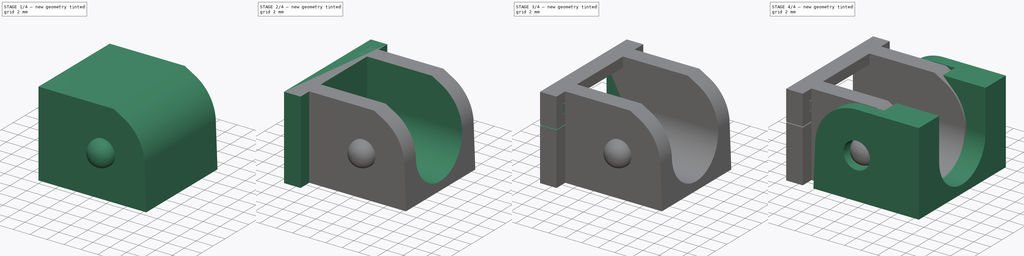
[diagram: build sequence overview — one tinted view per stage of 4, left to right]
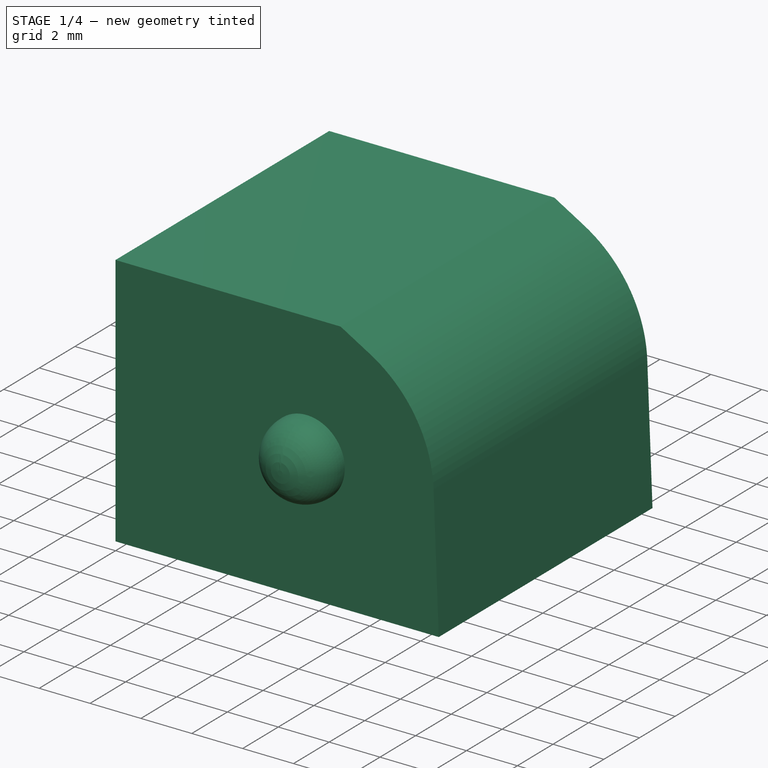
[diagram: stage 1 of 4 — iso view after this stage's code; geometry added in this stage tinted green]
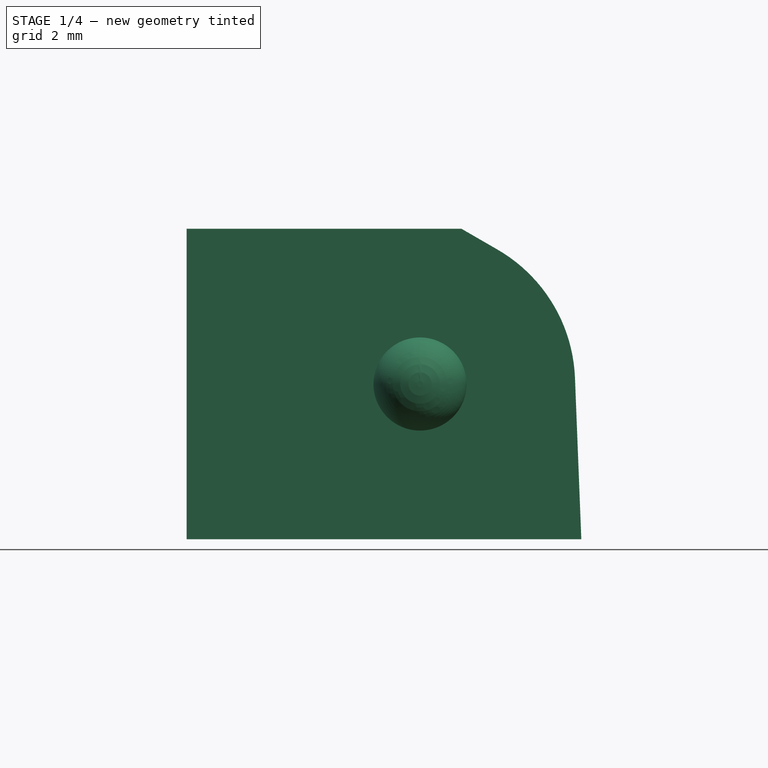
[diagram: stage 1 of 4 — front view after this stage's code; geometry added in this stage tinted green]
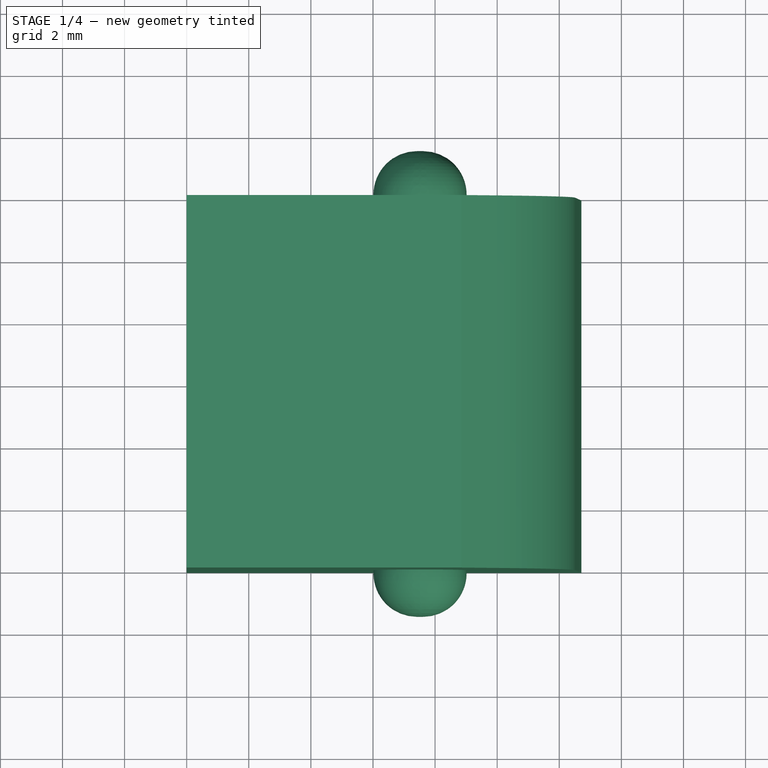
[diagram: stage 1 of 4 — top view after this stage's code; geometry added in this stage tinted green]
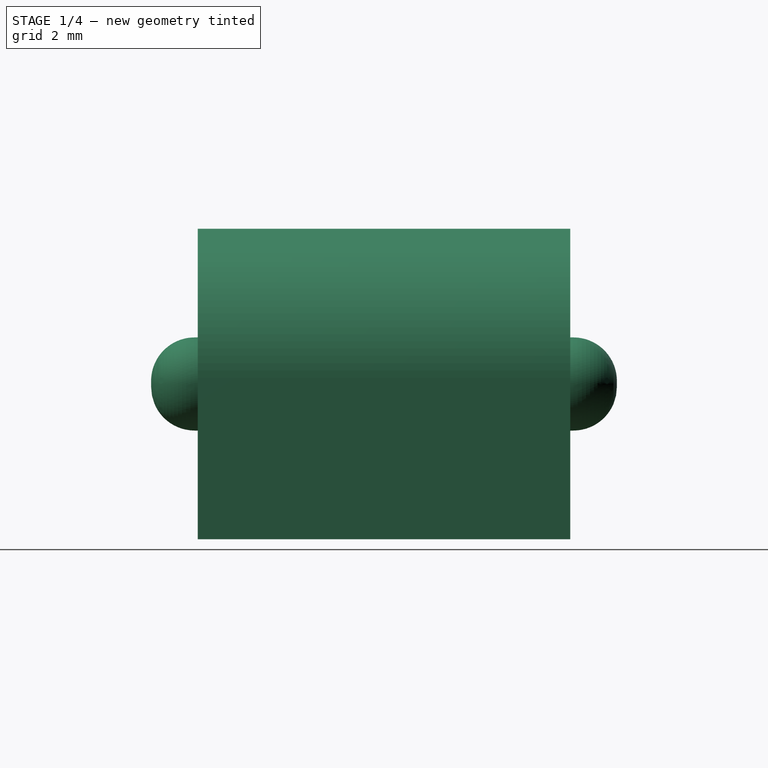
[diagram: stage 1 of 4 — right view after this stage's code; geometry added in this stage tinted green]
FCSTD DOCUMENT  (FreeCAD 0.19R23463 (Git))
Label: cable_carrier
License: All rights reserved
LicenseURL: http://en.wikipedia.org/wiki/All_rights_reserved
objects: Sketcher::SketchObject×12, PartDesign::Pocket×6, PartDesign::Pad×4, PartDesign::Body×4, Spreadsheet::Sheet×1, PartDesign::ShapeBinder×1, PartDesign::Plane×1, PartDesign::Revolution×1, PartDesign::Mirrored×1
note: 41 computed .brp shape members not serialized (recipe doc carries the construction recipe); baked Part::Feature solids carry a one-line shape summary decoded from their .brp

FEATURE [Spreadsheet::Sheet] Spreadsheet  label="parameters"
FEATURE [Sketcher::SketchObject] Sketch
  MapMode = 5
  Placement = pos=(0,0,0) rot=(1,0,0;1.5708rad)
  Support = -> [XZ_Plane]
  expr: Constraints[24] = 4.5 / 2
  sketch-geometry (19):
    g0: LineSegment StartX=0 StartY=0 StartZ=0 EndX=12.7099 EndY=0 EndZ=0
    g1: LineSegment StartX=12.7099 StartY=0 StartZ=0 EndX=12.5058 EndY=5.1963 EndZ=0
    g2: LineSegment StartX=7.50963 StartY=10 StartZ=0 EndX=0 EndY=10 EndZ=0
    g3: LineSegment StartX=0 StartY=10 StartZ=0 EndX=0 EndY=0 EndZ=0
    g4: LineSegment StartX=0 StartY=0 StartZ=0 EndX=-12.9186 EndY=0 EndZ=0
    g5: LineSegment StartX=-12.9186 StartY=0 StartZ=0 EndX=-12.4942 EndY=5.3923 EndZ=0
    g6: LineSegment StartX=-7.50963 StartY=10 StartZ=0 EndX=0 EndY=10 EndZ=0
    g7: ArcOfCircle CenterX=-7.50963 CenterY=5 CenterZ=0 NormalX=0 NormalY=0 NormalZ=1 AngleXU=0 Radius=5 StartAngle=1.5708 EndAngle=3.06305
    g8: ArcOfCircle CenterX=7.50963 CenterY=5 CenterZ=0 NormalX=0 NormalY=0 NormalZ=1 AngleXU=0 Radius=5 StartAngle=1.0472 EndAngle=1.5708
    g9: LineSegment StartX=-7.50963 StartY=5 StartZ=0 EndX=7.50963 EndY=5 EndZ=0
    g10: Circle CenterX=-7.50963 CenterY=5 CenterZ=0 NormalX=0 NormalY=0 NormalZ=1 AngleXU=0 Radius=1.6
    g11: Circle CenterX=7.50963 CenterY=5 CenterZ=0 NormalX=0 NormalY=0 NormalZ=1 AngleXU=0 Radius=1.5
    g12: LineSegment StartX=-12.4942 StartY=5.3923 StartZ=0 EndX=-12.4942 EndY=0 EndZ=0
    g13: LineSegment StartX=12.5058 StartY=5.1963 StartZ=0 EndX=12.5058 EndY=0 EndZ=0
    g14: LineSegment StartX=7.50963 StartY=5 StartZ=0 EndX=7.50963 EndY=0 EndZ=0
    g15: LineSegment StartX=8.84938 StartY=10 StartZ=0 EndX=10.0096 EndY=9.33013 EndZ=0
    g16: LineSegment StartX=10.0096 StartY=9.33013 StartZ=0 EndX=0 EndY=9.33013 EndZ=0
    g17: ArcOfCircle CenterX=7.50963 CenterY=5 CenterZ=0 NormalX=0 NormalY=0 NormalZ=1 AngleXU=0 Radius=5 StartAngle=0.0392699 EndAngle=1.0472
    g18: LineSegment StartX=7.50963 StartY=10 StartZ=0 EndX=8.84938 EndY=10 EndZ=0
  constraints (47):
    c: Coincident(g0,g1)
    c: Coincident(g2,g3)
    c: Horizontal(g0)
    c: Vertical(g3)
    c: Coincident(g4,g5)
    c: Horizontal(g6)
    c: Coincident(g6,g2)
    c: Tangent(g6,g7) = 1.5708
    c: Tangent(g5,g7) = 1.5708
    c: Coincident(g9,g7)
    c: Coincident(g9,g8)
    c: Coincident(g10,g7)
    c: Coincident(g11,g8)
    c: Diameter(g11) = 3
    c: Diameter(g10) = 3.2
    c: Symmetric(g7,g8,g3)
    c: Coincident(g12,g5)
    c: PointOnObject(g12,g4)
    c: Vertical(g12)
    c: Angle(g5,g12) = 0.0785398
    c: Coincident(g13,g1)
    c: PointOnObject(g13,g0)
    c: Vertical(g13)
    c: DistanceX(g12,g13) = 25
    c: Angle(g13,g1) = 0.0392699
    c: DistanceY(g3,g3) = 10
    c: Coincident(g14,g8)
    c: PointOnObject(g14,g0)
    c: Symmetric(g14,g2,g8)
    c: Horizontal(g4)
    c: Coincident(g3,g4)
    c: PointOnObject(g3,g-1)
    c: Coincident(g0,g3)
    c: PointOnObject(g3,g-2)
    c: Coincident(g16,g15)
    c: PointOnObject(g16,g3)
    c: Horizontal(g16)
    c: Angle(g15,g16) = 0.523599
    c: Coincident(g17,g8)
    c: Coincident(g17,g8)
    c: Tangent(g17,g1) = -1.5708
    c: Tangent(g8,g15) = 1.5708
    c: Tangent(g2,g8) = -1.5708
    c: Horizontal(g2)
    c: Coincident(g18,g2)
    c: Horizontal(g18)
    c: Coincident(g15,g18)
FEATURE [PartDesign::ShapeBinder] ShapeBinder
  Placement = pos=(0,0,0) rot=(1,0,0;1.5708rad)
  Support = -> [Sketch]
  TraceSupport = false
FEATURE [Sketcher::SketchObject] Sketch001
  ExternalGeometry = -> [ShapeBinder]
  MapMode = 5
  Placement = pos=(0,0,0) rot=(1,0,0;1.5708rad)
  Support = -> [XZ_Plane001]
  sketch-geometry (15):
    g0: LineSegment StartX=15.0197 StartY=0 StartZ=0 EndX=27.9388 EndY=0 EndZ=0
    g1: LineSegment StartX=27.9388 StartY=0 StartZ=0 EndX=27.5144 EndY=5.3923 EndZ=0
    g2: LineSegment StartX=22.5298 StartY=10 StartZ=0 EndX=15.0197 EndY=10 EndZ=0
    g3: LineSegment StartX=15.0197 StartY=10 StartZ=0 EndX=15.0197 EndY=0 EndZ=0
    g4: LineSegment StartX=15.0197 StartY=0 StartZ=0 EndX=2.28657 EndY=0 EndZ=0
    g5: LineSegment StartX=2.28657 StartY=0 StartZ=0 EndX=2.51439 EndY=5.2181 EndZ=0
    g6: LineSegment StartX=7.50963 StartY=10 StartZ=0 EndX=15.0197 EndY=10 EndZ=0
    g7: ArcOfCircle CenterX=7.50963 CenterY=5 CenterZ=0 NormalX=0 NormalY=0 NormalZ=1 AngleXU=0 Radius=5 StartAngle=1.5708 EndAngle=3.09796
    g8: ArcOfCircle CenterX=22.5298 CenterY=5 CenterZ=0 NormalX=0 NormalY=0 NormalZ=1 AngleXU=0 Radius=5 StartAngle=0.0785398 EndAngle=1.5708
    g9: LineSegment StartX=7.50963 StartY=5 StartZ=0 EndX=22.5298 EndY=5 EndZ=0
    g10: Circle CenterX=7.50963 CenterY=5 CenterZ=0 NormalX=0 NormalY=0 NormalZ=1 AngleXU=0 Radius=1.6
    g11: Circle CenterX=22.5298 CenterY=5 CenterZ=0 NormalX=0 NormalY=0 NormalZ=1 AngleXU=0 Radius=1.5
    g12: LineSegment StartX=2.51439 StartY=5.2181 StartZ=0 EndX=2.51439 EndY=0 EndZ=0
    g13: LineSegment StartX=27.5144 StartY=5.3923 StartZ=0 EndX=27.5144 EndY=0 EndZ=0
    g14: LineSegment StartX=22.5298 StartY=5 StartZ=0 EndX=22.5298 EndY=0 EndZ=0
  constraints (36):
    c: Coincident(g0,g1)
    c: Coincident(g2,g3)
    c: Horizontal(g0)
    c: Horizontal(g2)
    c: Vertical(g3)
    c: Coincident(g4,g5)
    c: Horizontal(g6)
    c: Coincident(g6,g2)
    c: Tangent(g6,g7) = 1.5708
    c: Tangent(g5,g7) = 1.5708
    c: Tangent(g2,g8) = -1.5708
    c: Tangent(g1,g8) = -1.5708
    c: Coincident(g9,g7)
    c: Coincident(g9,g8)
    c: Coincident(g10,g7)
    c: Coincident(g11,g8)
    c: Diameter(g11) = 3
    c: Diameter(g10) = 3.2
    c: Symmetric(g7,g8,g3)
    c: Coincident(g12,g5)
    c: PointOnObject(g12,g4)
    c: Vertical(g12)
    c: Angle(g5,g12) = 0.0436332
    c: Coincident(g13,g1)
    c: PointOnObject(g13,g0)
    c: Vertical(g13)
    c: DistanceX(g12,g13) = 25
    c: Angle(g13,g1) = 0.0785398
    c: DistanceY(g3,g3) = 10
    c: Coincident(g14,g8)
    c: PointOnObject(g14,g0)
    c: Symmetric(g14,g2,g8)
    c: Horizontal(g4)
    c: Coincident(g3,g4)
    c: Coincident(g0,g3)
    c: Coincident(g7,g-3)
FEATURE [PartDesign::Pad] Pad
  Direction = (1,1,1)
  Length = 12
  Length2 = 100
  Midplane = true
  Placement = pos=(0,0,0) rot=(1,0,0;1.5708rad)
  Profile = -> Sketch
  Reversed = true
  Type = 0
FEATURE [Sketcher::SketchObject] Sketch003
  ExternalGeometry = -> [ShapeBinder,Sketch001]
  MapMode = 5
  Placement = pos=(0,0,0) rot=(1,0,0;1.5708rad)
  Support = -> [XZ_Plane001]
  sketch-geometry (24):
    g0: LineSegment StartX=15.0197 StartY=-3e-16 StartZ=0 EndX=27.9388 EndY=-3e-16 EndZ=0
    g1: LineSegment StartX=27.9388 StartY=-3e-16 StartZ=0 EndX=27.5144 EndY=5.3923 EndZ=0
    g2: LineSegment StartX=22.5298 StartY=10 StartZ=0 EndX=15.0197 EndY=10 EndZ=0
    g3: LineSegment StartX=15.0197 StartY=10 StartZ=0 EndX=15.0197 EndY=0 EndZ=0
    g4: LineSegment StartX=2.28657 StartY=0 StartZ=0 EndX=2.51439 EndY=5.2181 EndZ=0
    g5: ArcOfCircle CenterX=7.50963 CenterY=5 CenterZ=0 NormalX=0 NormalY=0 NormalZ=1 AngleXU=0 Radius=5 StartAngle=1.5708 EndAngle=3.09796
    g6: ArcOfCircle CenterX=22.5298 CenterY=5 CenterZ=0 NormalX=0 NormalY=0 NormalZ=1 AngleXU=0 Radius=5 StartAngle=0.0785398 EndAngle=1.5708
    g7: LineSegment StartX=7.50963 StartY=5 StartZ=0 EndX=22.5298 EndY=5 EndZ=0
    g8: Circle CenterX=7.50963 CenterY=5 CenterZ=0 NormalX=0 NormalY=0 NormalZ=1 AngleXU=0 Radius=1.6
    g9: Circle CenterX=22.5298 CenterY=5 CenterZ=0 NormalX=0 NormalY=0 NormalZ=1 AngleXU=0 Radius=1.5
    g10: LineSegment StartX=2.51439 StartY=5.2181 StartZ=0 EndX=2.51439 EndY=0 EndZ=0
    g11: LineSegment StartX=27.5144 StartY=5.3923 StartZ=0 EndX=27.5144 EndY=0 EndZ=0
    g12: LineSegment StartX=22.5298 StartY=5 StartZ=0 EndX=22.5298 EndY=0 EndZ=0
    g13: LineSegment StartX=2.28657 StartY=0 StartZ=0 EndX=2.51439 EndY=0 EndZ=0
    g14: LineSegment StartX=2.51439 StartY=0 StartZ=0 EndX=12.4913 EndY=0 EndZ=0
    g15: LineSegment StartX=12.4913 StartY=0 StartZ=0 EndX=12.7096 EndY=5 EndZ=0
    g16: ArcOfCircle CenterX=7.50963 CenterY=5 CenterZ=0 NormalX=0 NormalY=0 NormalZ=1 AngleXU=0 Radius=5.2 StartAngle=0 EndAngle=0.785398
    g17: LineSegment StartX=11.1866 StartY=8.67696 StartZ=0 EndX=11.1866 EndY=10 EndZ=0
    g18: LineSegment StartX=11.1866 StartY=10 StartZ=0 EndX=15.0197 EndY=10 EndZ=0
    g19: LineSegment StartX=11.1866 StartY=8.67696 StartZ=0 EndX=9.86354 EndY=10 EndZ=0
    g20: LineSegment StartX=11.1866 StartY=10 StartZ=0 EndX=9.86354 EndY=10 EndZ=0
    g21: LineSegment StartX=9.86354 StartY=10 StartZ=0 EndX=7.50963 EndY=10 EndZ=0
    g22: LineSegment StartX=15.0197 StartY=-3e-16 StartZ=0 EndX=12.4913 EndY=0 EndZ=0
    g23: LineSegment StartX=12.7096 StartY=5 StartZ=0 EndX=12.7096 EndY=0 EndZ=0
  constraints (60):
    c: Coincident(g0,g1)
    c: Coincident(g2,g3)
    c: Horizontal(g0)
    c: Horizontal(g2)
    c: Vertical(g3)
    c: Tangent(g4,g5) = 1.5708
    c: Tangent(g2,g6) = -1.5708
    c: Tangent(g1,g6) = -1.5708
    c: Coincident(g7,g5)
    c: Coincident(g7,g6)
    c: Coincident(g8,g5)
    c: Coincident(g9,g6)
    c: Diameter(g9) = 3
    c: Diameter(g8) = 3.2
    c: Symmetric(g5,g6,g3)
    c: Coincident(g10,g4)
    c: Vertical(g10)
    c: Angle(g4,g10) = 0.0436332
    c: Coincident(g11,g1)
    c: Vertical(g11)
    c: DistanceX(g10,g11) = 25
    c: Angle(g11,g1) = 0.0785398
    c: Coincident(g12,g6)
    c: PointOnObject(g12,g0)
    c: Symmetric(g12,g2,g6)
    c: Coincident(g0,g3)
    c: Coincident(g4,g13)
    c: Coincident(g13,g10)
    c: Horizontal(g13)
    c: Coincident(g13,g14)
    c: Horizontal(g14)
    c: Coincident(g5,g-3)
    c: PointOnObject(g11,g0)
    c: Coincident(g15,g14)
    c: Coincident(g5,g-4)
    c: Coincident(g16,g5)
    c: Coincident(g17,g16)
    c: Vertical(g17)
    c: Coincident(g18,g17)
    c: Horizontal(g18)
    c: PointOnObject(g16,g7)
    c: Angle(g16) = 0.785398
    c: Tangent(g19,g16) = -1.5708
    c: Coincident(g17,g20)
    c: Coincident(g20,g19)
    c: Horizontal(g20)
    c: Coincident(g20,g21)
    c: Horizontal(g21)
    c: Tangent(g21,g5) = -1.5708
    c: PointOnObject(g13,g-3)
    c: Coincident(g22,g14)
    c: Coincident(g15,g16)
    c: Coincident(g23,g15)
    c: PointOnObject(g23,g22)
    c: Vertical(g23)
    c: Angle(g15,g23) = 0.0436332
    c: Coincident(g22,g0)
    c: Coincident(g18,g2)
    c: Radius(g16) = 5.2
    c: Radius(g5) = 5
FEATURE [Sketcher::SketchObject] Sketch004  label="datumhelper"
  MapMode = 5
  Placement = pos=(0,-6,-1.3e-15) rot=(1,0,0;1.5708rad)
  Support = -> [Pad]
  sketch-geometry (19):
    g0: LineSegment StartX=0 StartY=0 StartZ=0 EndX=12.9244 EndY=0 EndZ=0
    g1: LineSegment StartX=12.9244 StartY=0 StartZ=0 EndX=12.5 EndY=5.3923 EndZ=0
    g2: LineSegment StartX=7.51541 StartY=10 StartZ=0 EndX=0 EndY=10 EndZ=0
    g3: LineSegment StartX=0 StartY=10 StartZ=0 EndX=0 EndY=0 EndZ=0
    g4: LineSegment StartX=0 StartY=0 StartZ=0 EndX=-12.9244 EndY=0 EndZ=0
    g5: LineSegment StartX=-12.9244 StartY=0 StartZ=0 EndX=-12.5 EndY=5.3923 EndZ=0
    g6: LineSegment StartX=-7.51541 StartY=10 StartZ=0 EndX=0 EndY=10 EndZ=0
    g7: ArcOfCircle CenterX=-7.51541 CenterY=5 CenterZ=0 NormalX=0 NormalY=0 NormalZ=1 AngleXU=0 Radius=5 StartAngle=1.5708 EndAngle=3.06305
    g8: ArcOfCircle CenterX=7.51541 CenterY=5 CenterZ=0 NormalX=0 NormalY=0 NormalZ=1 AngleXU=0 Radius=5 StartAngle=1.0472 EndAngle=1.5708
    g9: LineSegment StartX=-7.51541 StartY=5 StartZ=0 EndX=7.51541 EndY=5 EndZ=0
    g10: Circle CenterX=-7.51541 CenterY=5 CenterZ=0 NormalX=0 NormalY=0 NormalZ=1 AngleXU=0 Radius=1.6
    g11: Circle CenterX=7.51541 CenterY=5 CenterZ=0 NormalX=0 NormalY=0 NormalZ=1 AngleXU=0 Radius=1.5
    g12: LineSegment StartX=-12.5 StartY=5.3923 StartZ=0 EndX=-12.5 EndY=0 EndZ=0
    g13: LineSegment StartX=12.5 StartY=5.3923 StartZ=0 EndX=12.5 EndY=0 EndZ=0
    g14: LineSegment StartX=7.51541 StartY=5 StartZ=0 EndX=7.51541 EndY=0 EndZ=0
    g15: LineSegment StartX=8.85516 StartY=10 StartZ=0 EndX=10.0154 EndY=9.33013 EndZ=0
    g16: LineSegment StartX=10.0154 StartY=9.33013 StartZ=0 EndX=0 EndY=9.33013 EndZ=0
    g17: ArcOfCircle CenterX=7.51541 CenterY=5 CenterZ=0 NormalX=0 NormalY=0 NormalZ=1 AngleXU=0 Radius=5 StartAngle=0.0785398 EndAngle=1.0472
    g18: LineSegment StartX=7.51541 StartY=10 StartZ=0 EndX=8.85516 EndY=10 EndZ=0
  constraints (47):
    c: Coincident(g0,g1)
    c: Coincident(g2,g3)
    c: Horizontal(g0)
    c: Vertical(g3)
    c: Coincident(g4,g5)
    c: Horizontal(g6)
    c: Coincident(g6,g2)
    c: Tangent(g6,g7) = 1.5708
    c: Tangent(g5,g7) = 1.5708
    c: Coincident(g9,g7)
    c: Coincident(g9,g8)
    c: Coincident(g10,g7)
    c: Coincident(g11,g8)
    c: Diameter(g11) = 3
    c: Diameter(g10) = 3.2
    c: Symmetric(g7,g8,g3)
    c: Coincident(g12,g5)
    c: PointOnObject(g12,g4)
    c: Vertical(g12)
    c: Angle(g5,g12) = 0.0785398
    c: Coincident(g13,g1)
    c: PointOnObject(g13,g0)
    c: Vertical(g13)
    c: DistanceX(g12,g13) = 25
    c: Angle(g13,g1) = 0.0785398
    c: DistanceY(g3,g3) = 10
    c: Coincident(g14,g8)
    c: PointOnObject(g14,g0)
    c: Symmetric(g14,g2,g8)
    c: Horizontal(g4)
    c: Coincident(g3,g4)
    c: PointOnObject(g3,g-1)
    c: Coincident(g0,g3)
    c: PointOnObject(g3,g-2)
    c: Coincident(g16,g15)
    c: PointOnObject(g16,g3)
    c: Horizontal(g16)
    c: Angle(g15,g16) = 0.523599
    c: Coincident(g17,g8)
    c: Coincident(g17,g8)
    c: Tangent(g17,g1) = -1.5708
    c: Tangent(g8,g15) = 1.5708
    c: Tangent(g2,g8) = -1.5708
    c: Horizontal(g2)
    c: Coincident(g18,g2)
    c: Horizontal(g18)
    c: Coincident(g15,g18)
FEATURE [PartDesign::Plane] DatumPlane
  Length = 60
  MapMode = 1
  Placement = pos=(7.51541,-6,5) rot=(0.57735,-0.57735,-0.57735;2.0944rad)
  ResizeMode = 0
  Support = -> [Sketch004]
  Width = 60
FEATURE [Sketcher::SketchObject] Sketch005
  MapMode = 5
  Placement = pos=(7.51541,-6,5) rot=(0.57735,-0.57735,-0.57735;2.0944rad)
  Support = -> [DatumPlane]
  sketch-geometry (6):
    g0: LineSegment StartX=0 StartY=0 StartZ=0 EndX=1.5 EndY=0 EndZ=0
    g1: LineSegment StartX=0.1 StartY=1.5 StartZ=0 EndX=0 EndY=1.5 EndZ=0
    g2: LineSegment StartX=0 StartY=1.5 StartZ=0 EndX=0 EndY=0 EndZ=0
    g3: LineSegment StartX=1.5 StartY=0.1 StartZ=0 EndX=1.5 EndY=0 EndZ=0
    g4: ArcOfCircle CenterX=0.1 CenterY=0.1 CenterZ=0 NormalX=0 NormalY=0 NormalZ=1 AngleXU=0 Radius=1.4 StartAngle=0 EndAngle=1.5708
    g5: LineSegment StartX=0 StartY=0 StartZ=0 EndX=1.5 EndY=0 EndZ=0
  constraints (15):
    c: Coincident(g1,g2)
    c: Coincident(g2,g0)
    c: Horizontal(g0)
    c: Horizontal(g1)
    c: Vertical(g2)
    c: Coincident(g0,g-1)
    c: DistanceY(g2,g2) = 1.5
    c: Tangent(g1,g4) = -1.5708
    c: Vertical(g3)
    c: DistanceX(g1,g3) = 1.5
    c: Coincident(g0,g3)
    c: Radius(g4) = 1.4
    c: Tangent(g3,g4) = 1.5708
    c: Coincident(g5,g0)
    c: Coincident(g5,g0)
FEATURE [PartDesign::Revolution] Revolution
  Angle = 360
  Axis = (0,-1.5,0)
  Base = (7.51541,-6,5)
  BaseFeature = -> Pad
  Placement = pos=(0,0,0) rot=(1,0,0;1.5708rad)
  Profile = -> Sketch005
  ReferenceAxis = -> Sketch005 [Axis0]
FEATURE [PartDesign::Mirrored] Mirrored
  BaseFeature = -> Revolution
  MirrorPlane = -> XZ_Plane
  Originals = -> [Revolution]
  Placement = pos=(0,0,0) rot=(1,0,0;1.5708rad)
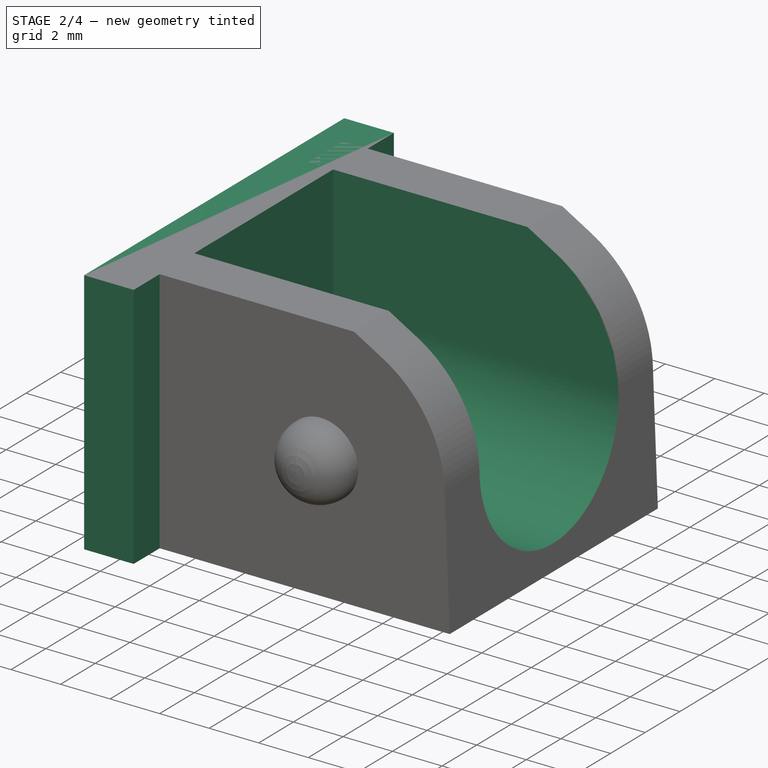
[diagram: stage 2 of 4 — iso view after this stage's code; geometry added in this stage tinted green]
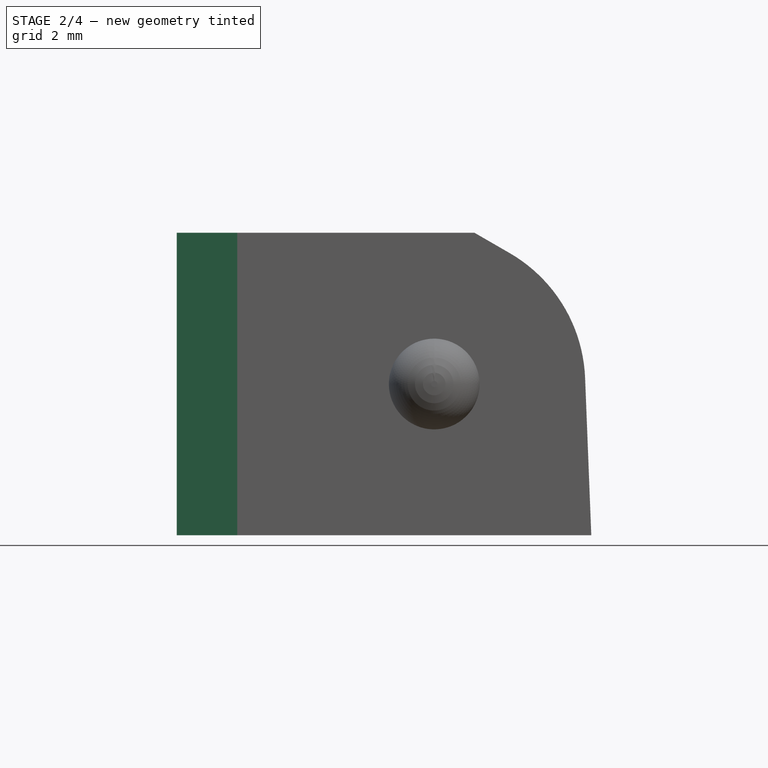
[diagram: stage 2 of 4 — front view after this stage's code; geometry added in this stage tinted green]
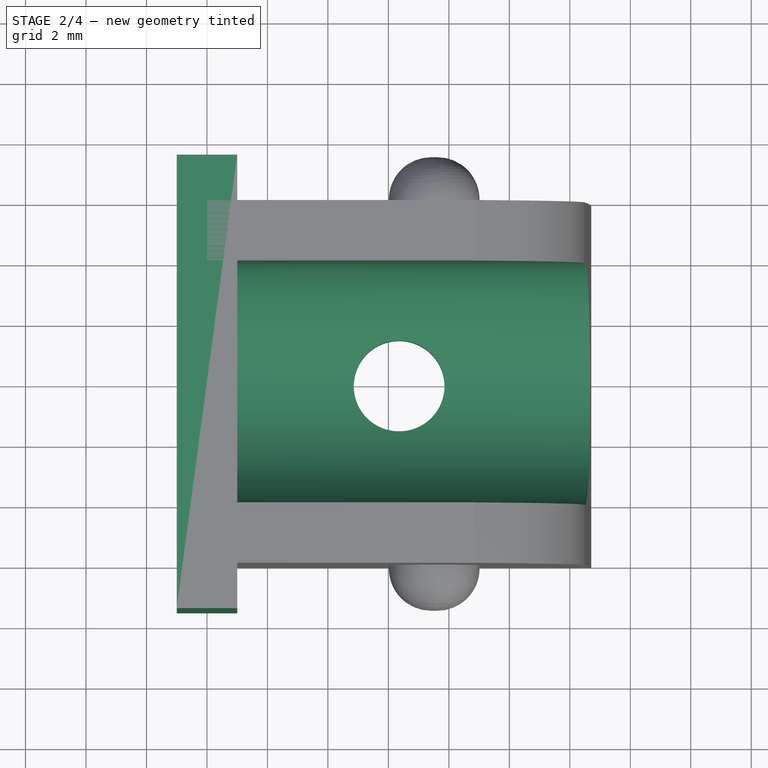
[diagram: stage 2 of 4 — top view after this stage's code; geometry added in this stage tinted green]
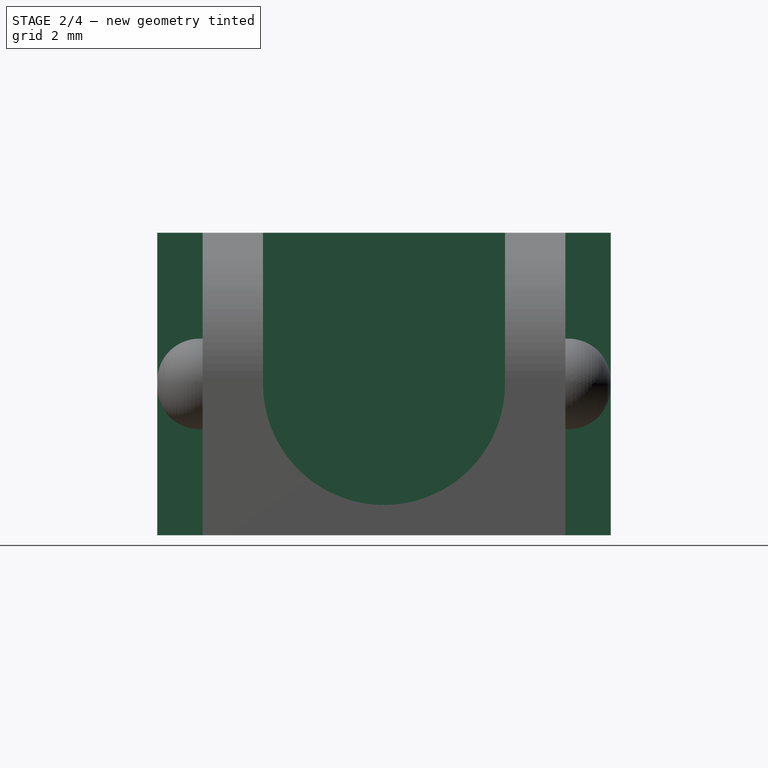
[diagram: stage 2 of 4 — right view after this stage's code; geometry added in this stage tinted green]
FEATURE [PartDesign::Body] Body001  label="outer"
  Group = -> [Sketch001,ShapeBinder,Pad001,Pocket,Sketch006,Pocket001]
  Origin = -> Origin001
  Tip = -> Pocket001
FEATURE [Sketcher::SketchObject] Sketch007  label="cable_cavity_sketch"
  ExternalGeometry = -> [Mirrored]
  MapMode = 5
  Placement = pos=(0,0,0) rot=(0.57735,0.57735,0.57735;2.0944rad)
  Support = -> [YZ_Plane]
  sketch-geometry (7):
    g0: LineSegment StartX=-6 StartY=10 StartZ=0 EndX=6 EndY=0 EndZ=0
    g1: LineSegment StartX=6 StartY=10 StartZ=0 EndX=-6 EndY=0 EndZ=0
    g2: ArcOfCircle CenterX=-2e-16 CenterY=5 CenterZ=0 NormalX=0 NormalY=0 NormalZ=1 AngleXU=0 Radius=4 StartAngle=3.14159 EndAngle=6.28319
    g3: LineSegment StartX=-4 StartY=5 StartZ=0 EndX=4 EndY=5 EndZ=0
    g4: LineSegment StartX=4 StartY=5 StartZ=0 EndX=4 EndY=10 EndZ=0
    g5: LineSegment StartX=4 StartY=10 StartZ=0 EndX=-4 EndY=10 EndZ=0
    g6: LineSegment StartX=-4 StartY=10 StartZ=0 EndX=-4 EndY=5 EndZ=0
  constraints (19):
    c: Coincident(g0,g-3)
    c: Coincident(g0,g-4)
    c: Coincident(g1,g-3)
    c: Coincident(g1,g-4)
    c: PointOnObject(g2,g1)
    c: Coincident(g3,g4)
    c: Coincident(g4,g5)
    c: Coincident(g5,g6)
    c: Coincident(g6,g3)
    c: Horizontal(g3)
    c: Horizontal(g5)
    c: Vertical(g4)
    c: Vertical(g6)
    c: Coincident(g3,g2)
    c: Tangent(g2,g4)
    c: Coincident(g2,g3)
    c: PointOnObject(g2,g0)
    c: PointOnObject(g4,g-3)
    c: Diameter(g2) = 8
FEATURE [PartDesign::Pocket] Pocket002  label="cable_cavity_pocket"
  BaseFeature = -> Mirrored
  Length = 5
  Length2 = 100
  Midplane = true
  Placement = pos=(0,0,0) rot=(1,0,0;1.5708rad)
  Profile = -> Sketch007
  Type = 1
FEATURE [PartDesign::Body] Body002  label="separator_clip"
  Group = -> [Sketch008,Pad002]
  Origin = -> Origin002
  Tip = -> Pad002
FEATURE [Sketcher::SketchObject] Sketch009
  MapMode = 5
  Placement = pos=(0,0,0) rot=(0.57735,0.57735,0.57735;2.0944rad)
  Support = -> [YZ_Plane003]
  expr: Constraints[33] = 1.2mm + 0.1mm
  expr: Constraints[34] = 0.6 + 0.1
  expr: Constraints[36] = 1.2 + 0.1
  sketch-geometry (14):
    g0: LineSegment StartX=-7.5 StartY=0 StartZ=0 EndX=7.5 EndY=0 EndZ=0
    g1: LineSegment StartX=7.5 StartY=0 StartZ=0 EndX=7.5 EndY=10 EndZ=0
    g2: LineSegment StartX=7.5 StartY=10 StartZ=0 EndX=-7.5 EndY=10 EndZ=0
    g3: LineSegment StartX=-7.5 StartY=10 StartZ=0 EndX=-7.5 EndY=0 EndZ=0
    g4: LineSegment StartX=-7.5 StartY=10 StartZ=0 EndX=-7.5 EndY=6.30535 EndZ=0
    g5: LineSegment StartX=-7.5 StartY=6.30535 StartZ=0 EndX=-6.2136 EndY=6.30535 EndZ=0
    g6: ArcOfCircle CenterX=-6.3 CenterY=7 CenterZ=0 NormalX=0 NormalY=0 NormalZ=1 AngleXU=0 Radius=0.7 StartAngle=4.83614 EndAngle=7.71063
    g7: LineSegment StartX=-6.2 StartY=7.69282 StartZ=0 EndX=-6.2 EndY=8.7 EndZ=0
    g8: LineSegment StartX=-6.2 StartY=8.7 StartZ=0 EndX=6.2 EndY=8.7 EndZ=0
    g9: LineSegment StartX=6.2 StartY=8.7 StartZ=0 EndX=6.2 EndY=7.69282 EndZ=0
    g10: ArcOfCircle CenterX=6.3 CenterY=7 CenterZ=0 NormalX=0 NormalY=0 NormalZ=1 AngleXU=0 Radius=0.7 StartAngle=1.71414 EndAngle=4.58864
    g11: LineSegment StartX=6.2136 StartY=6.30535 StartZ=0 EndX=7.5 EndY=6.30535 EndZ=0
    g12: LineSegment StartX=7.5 StartY=6.30535 StartZ=0 EndX=7.5 EndY=10 EndZ=0
    g13: LineSegment StartX=-6.3 StartY=7 StartZ=0 EndX=-5.6 EndY=7 EndZ=0
  constraints (39):
    c: Coincident(g0,g1)
    c: Coincident(g1,g2)
    c: Coincident(g3,g0)
    c: Horizontal(g0)
    c: Vertical(g1)
    c: PointOnObject(g0,g-1)
    c: DistanceX(g2,g2) = 15
    c: DistanceY(g1,g1) = 10
    c: Symmetric(g2,g1,g-2)
    c: Coincident(g4,g5)
    c: Horizontal(g5)
    c: Coincident(g7,g8)
    c: Coincident(g8,g9)
    c: Vertical(g9)
    c: Coincident(g6,g7)
    c: Coincident(g5,g6)
    c: Equal(g7,g9)
    c: Coincident(g10,g9)
    c: PointOnObject(g11,g1)
    c: Horizontal(g11)
    c: Coincident(g12,g11)
    c: Coincident(g12,g2)
    c: Symmetric(g7,g8,g-2)
    c: Equal(g5,g11)
    c: PointOnObject(g4,g3)
    c: Coincident(g3,g2)
    c: Coincident(g4,g2)
    c: Symmetric(g6,g10,g-2)
    c: Coincident(g13,g6)
    c: PointOnObject(g13,g6)
    c: Horizontal(g13)
    c: Vertical(g3)
    c: Vertical(g7)
    c: DistanceY(g8,g2) = 1.3
    c: Radius(g10) = 0.7
    c: DistanceY(g6,g2) = 3
    c: DistanceX(g2,g7) = 1.3
    c: Coincident(g11,g10)
    c: DistanceX(g10,g11) = 1.2
FEATURE [Sketcher::SketchObject] Sketch010
  ExternalGeometry = -> [Sketch009]
  MapMode = 5
  Placement = pos=(0,0,0) rot=(0.57735,0.57735,0.57735;2.0944rad)
  Support = -> [YZ_Plane003]
  sketch-geometry (4):
    g0: LineSegment StartX=-7.5 StartY=0 StartZ=0 EndX=7.5 EndY=0 EndZ=0
    g1: LineSegment StartX=7.5 StartY=0 StartZ=0 EndX=7.5 EndY=10 EndZ=0
    g2: LineSegment StartX=7.5 StartY=10 StartZ=0 EndX=-7.5 EndY=10 EndZ=0
    g3: LineSegment StartX=-7.5 StartY=10 StartZ=0 EndX=-7.5 EndY=0 EndZ=0
  constraints (10):
    c: Coincident(g0,g1)
    c: Coincident(g1,g2)
    c: Coincident(g2,g3)
    c: Coincident(g3,g0)
    c: Horizontal(g0)
    c: Vertical(g1)
    c: Vertical(g3)
    c: PointOnObject(g0,g-1)
    c: Coincident(g1,g-3)
    c: Coincident(g2,g-3)
FEATURE [PartDesign::Pad] Pad004
  Direction = (1,1,1)
  Length = 2
  Length2 = 100
  Midplane = true
  Placement = pos=(0,0,0) rot=(0.57735,0.57735,0.57735;2.0944rad)
  Profile = -> Sketch010
  Type = 0
FEATURE [PartDesign::Body] Body003  label="separator"
  Group = -> [Sketch009,Sketch010,Pad004,Pocket003,Sketch011,Pocket004]
  Origin = -> Origin003
  Tip = -> Pocket004
FEATURE [Sketcher::SketchObject] Sketch012
  ExternalGeometry = -> [Pocket002]
  MapMode = 5
  Support = -> [XY_Plane]
  sketch-geometry (6):
    g0: Circle CenterX=6.35497 CenterY=0 CenterZ=0 NormalX=0 NormalY=0 NormalZ=1 AngleXU=0 Radius=1.5
    g1: LineSegment StartX=12.7099 StartY=6 StartZ=0 EndX=0 EndY=6 EndZ=0
    g2: LineSegment StartX=0 StartY=6 StartZ=0 EndX=0 EndY=-6 EndZ=0
    g3: LineSegment StartX=0 StartY=-6 StartZ=0 EndX=12.7099 EndY=-6 EndZ=0
    g4: LineSegment StartX=12.7099 StartY=-6 StartZ=0 EndX=12.7099 EndY=6 EndZ=0
    g5: LineSegment StartX=0 StartY=6 StartZ=0 EndX=12.7099 EndY=-6 EndZ=0
  constraints (15):
    c: PointOnObject(g0,g-1)
    c: Diameter(g0) = 3
    c: Coincident(g1,g2)
    c: Coincident(g2,g3)
    c: Coincident(g3,g4)
    c: Coincident(g4,g1)
    c: Horizontal(g1)
    c: Horizontal(g3)
    c: Vertical(g2)
    c: Coincident(g3,g-3)
    c: PointOnObject(g-1,g2)
    c: Coincident(g1,g-3)
    c: Coincident(g5,g1)
    c: Coincident(g5,g3)
    c: PointOnObject(g0,g5)
FEATURE [PartDesign::Pocket] Pocket005  label="screw_pocket"
  BaseFeature = -> Pocket002
  Length = 5
  Length2 = 100
  Midplane = true
  Placement = pos=(0,0,0) rot=(1,0,0;1.5708rad)
  Profile = -> Sketch012
  Reversed = true
  Type = 1
FEATURE [PartDesign::Body] Body  label="inner"
  Group = -> [Sketch,Pad,Sketch004,DatumPlane,Sketch005,Revolution,Mirrored,Sketch007,Pocket002,Sketch012,Pocket005]
  Origin = -> Origin
  Tip = -> Pocket005
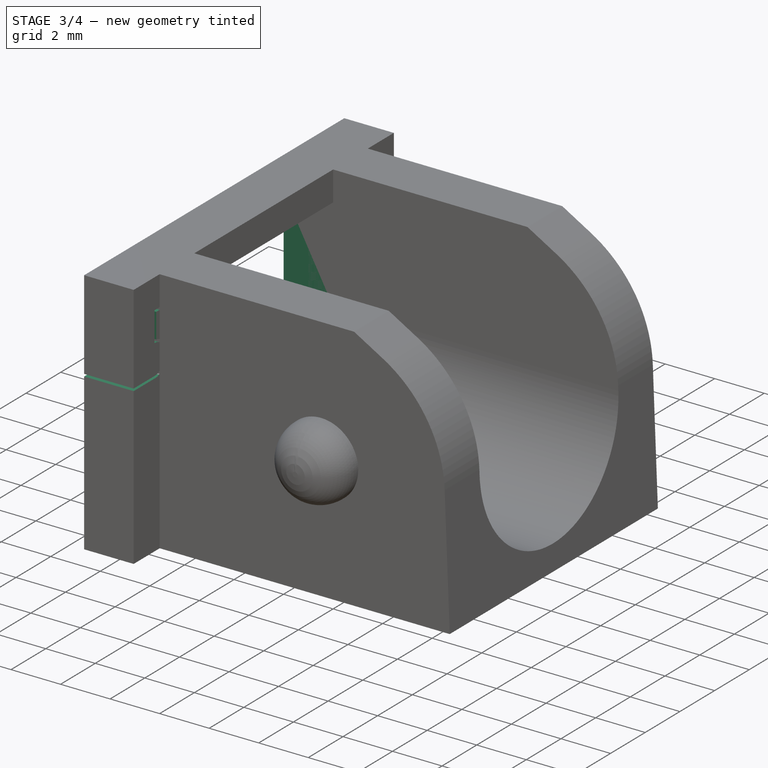
[diagram: stage 3 of 4 — iso view after this stage's code; geometry added in this stage tinted green]
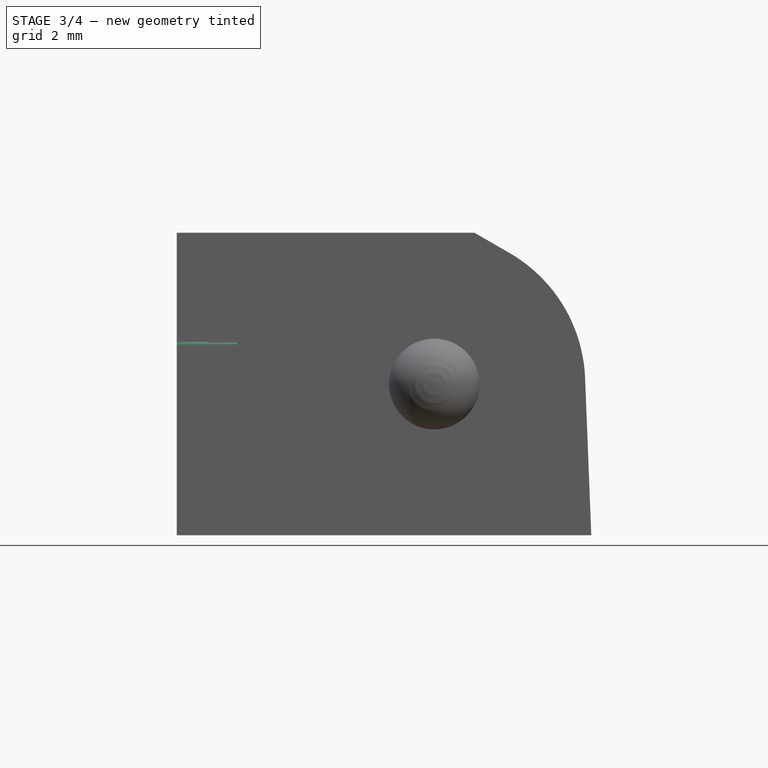
[diagram: stage 3 of 4 — front view after this stage's code; geometry added in this stage tinted green]
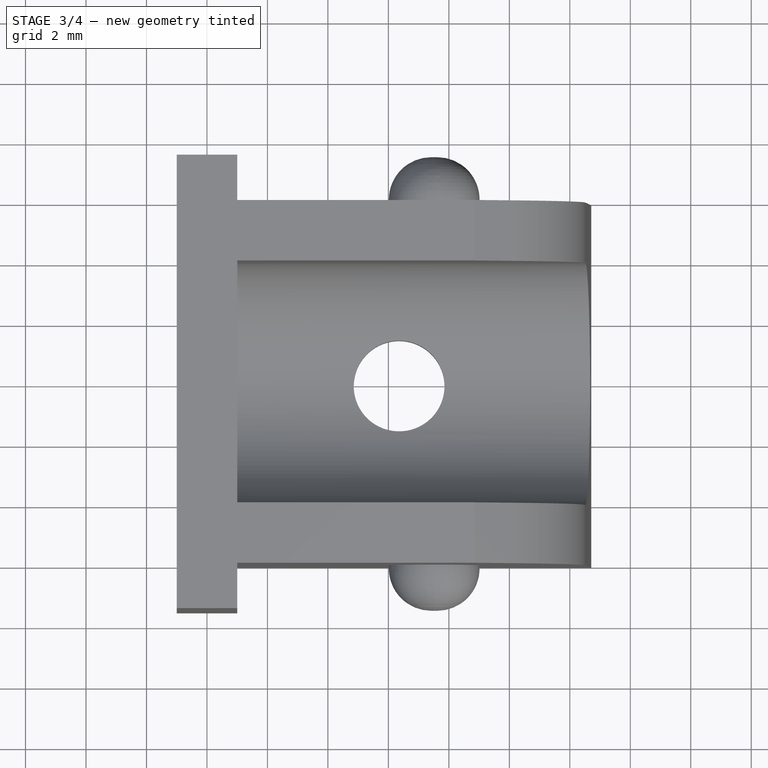
[diagram: stage 3 of 4 — top view after this stage's code; geometry added in this stage tinted green]
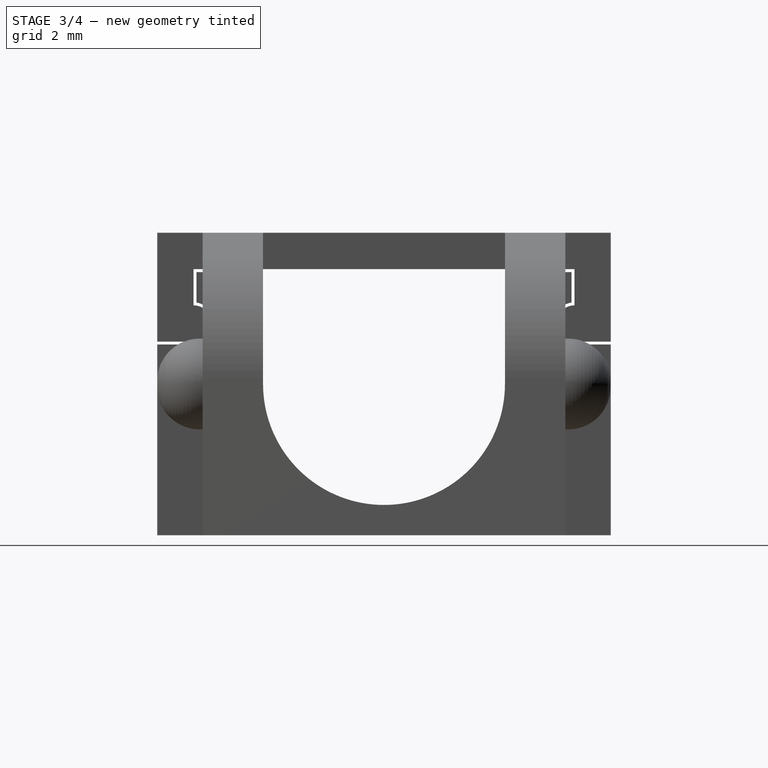
[diagram: stage 3 of 4 — right view after this stage's code; geometry added in this stage tinted green]
FEATURE [Sketcher::SketchObject] Sketch008
  MapMode = 5
  Placement = pos=(0,0,0) rot=(0.57735,0.57735,0.57735;2.0944rad)
  Support = -> [YZ_Plane002]
  sketch-geometry (14):
    g0: LineSegment StartX=-7.5 StartY=0 StartZ=0 EndX=7.5 EndY=0 EndZ=0
    g1: LineSegment StartX=7.5 StartY=0 StartZ=0 EndX=7.5 EndY=10 EndZ=0
    g2: LineSegment StartX=7.5 StartY=10 StartZ=0 EndX=-7.5 EndY=10 EndZ=0
    g3: LineSegment StartX=-7.5 StartY=10 StartZ=0 EndX=-7.5 EndY=0 EndZ=0
    g4: LineSegment StartX=-7.5 StartY=10 StartZ=0 EndX=-7.5 EndY=6.4 EndZ=0
    g5: LineSegment StartX=-7.5 StartY=6.4 StartZ=0 EndX=-6.3 EndY=6.4 EndZ=0
    g6: ArcOfCircle CenterX=-6.30001 CenterY=7 CenterZ=0 NormalX=0 NormalY=0 NormalZ=1 AngleXU=0 Radius=0.6 StartAngle=4.7124 EndAngle=7.85397
    g7: LineSegment StartX=-6.3 StartY=7.6 StartZ=0 EndX=-6.3 EndY=8.8 EndZ=0
    g8: LineSegment StartX=-6.3 StartY=8.8 StartZ=0 EndX=6.3 EndY=8.8 EndZ=0
    g9: LineSegment StartX=6.3 StartY=8.8 StartZ=0 EndX=6.3 EndY=7.6 EndZ=0
    g10: ArcOfCircle CenterX=6.30001 CenterY=7 CenterZ=0 NormalX=0 NormalY=0 NormalZ=1 AngleXU=0 Radius=0.6 StartAngle=1.5708 EndAngle=4.71238
    g11: LineSegment StartX=6.3 StartY=6.4 StartZ=0 EndX=7.5 EndY=6.4 EndZ=0
    g12: LineSegment StartX=7.5 StartY=6.4 StartZ=0 EndX=7.5 EndY=10 EndZ=0
    g13: LineSegment StartX=-6.30001 StartY=7 StartZ=0 EndX=-5.70001 EndY=7 EndZ=0
  constraints (38):
    c: Coincident(g0,g1)
    c: Coincident(g1,g2)
    c: Coincident(g3,g0)
    c: Horizontal(g0)
    c: Vertical(g1)
    c: PointOnObject(g0,g-1)
    c: DistanceX(g2,g2) = 15
    c: DistanceY(g1,g1) = 10
    c: Symmetric(g2,g1,g-2)
    c: Coincident(g4,g5)
    c: Horizontal(g5)
    c: Coincident(g7,g8)
    c: Coincident(g8,g9)
    c: Vertical(g9)
    c: Coincident(g6,g7)
    c: Coincident(g5,g6)
    c: Equal(g7,g9)
    c: Coincident(g10,g9)
    c: Coincident(g11,g10)
    c: PointOnObject(g11,g1)
    c: Horizontal(g11)
    c: Coincident(g12,g11)
    c: Coincident(g12,g2)
    c: Symmetric(g7,g8,g-2)
    c: Equal(g5,g11)
    c: PointOnObject(g4,g3)
    c: Coincident(g3,g2)
    c: Symmetric(g7,g5,g6)
    c: DistanceX(g11,g11) = 1.2
    c: Coincident(g4,g2)
    c: Symmetric(g8,g10,g9)
    c: Symmetric(g6,g10,g-2)
    c: Coincident(g13,g6)
    c: PointOnObject(g13,g6)
    c: Horizontal(g13)
    c: DistanceY(g4,g4) = 3.6
    c: DistanceY(g10,g2) = 3
    c: Radius(g6) = 0.6
FEATURE [PartDesign::Pad] Pad002
  Direction = (1,1,1)
  Length = 2
  Length2 = 100
  Midplane = true
  Placement = pos=(0,0,0) rot=(0.57735,0.57735,0.57735;2.0944rad)
  Profile = -> Sketch008
  Type = 0
FEATURE [PartDesign::Pocket] Pocket003
  BaseFeature = -> Pad004
  Length = 5
  Length2 = 100
  Midplane = true
  Placement = pos=(0,0,0) rot=(0.57735,0.57735,0.57735;2.0944rad)
  Profile = -> Sketch009
  Type = 1
FEATURE [Sketcher::SketchObject] Sketch011
  ExternalGeometry = -> [Sketch010]
  MapMode = 5
  Placement = pos=(0,0,0) rot=(0.57735,0.57735,0.57735;2.0944rad)
  Support = -> [YZ_Plane003]
  sketch-geometry (6):
    g0: LineSegment StartX=-7.5 StartY=10 StartZ=0 EndX=7.5 EndY=0 EndZ=0
    g1: ArcOfCircle CenterX=0 CenterY=5 CenterZ=0 NormalX=0 NormalY=0 NormalZ=1 AngleXU=0 Radius=4 StartAngle=3.14159 EndAngle=6.28319
    g2: LineSegment StartX=-4 StartY=5 StartZ=0 EndX=4 EndY=5 EndZ=0
    g3: LineSegment StartX=4 StartY=5 StartZ=0 EndX=4 EndY=10 EndZ=0
    g4: LineSegment StartX=4 StartY=10 StartZ=0 EndX=-4 EndY=10 EndZ=0
    g5: LineSegment StartX=-4 StartY=10 StartZ=0 EndX=-4 EndY=5 EndZ=0
  constraints (17):
    c: Coincident(g0,g-3)
    c: Coincident(g0,g-4)
    c: PointOnObject(g1,g0)
    c: PointOnObject(g1,g-2)
    c: Coincident(g2,g3)
    c: Coincident(g3,g4)
    c: Coincident(g4,g5)
    c: Coincident(g5,g2)
    c: Horizontal(g2)
    c: Horizontal(g4)
    c: Vertical(g3)
    c: Vertical(g5)
    c: Coincident(g2,g1)
    c: PointOnObject(g3,g-5)
    c: Coincident(g1,g2)
    c: Diameter(g1) = 8
    c: PointOnObject(g1,g2)
FEATURE [PartDesign::Pocket] Pocket004
  BaseFeature = -> Pocket003
  Length = 5
  Length2 = 100
  Midplane = true
  Placement = pos=(0,0,0) rot=(0.57735,0.57735,0.57735;2.0944rad)
  Profile = -> Sketch011
  Type = 1
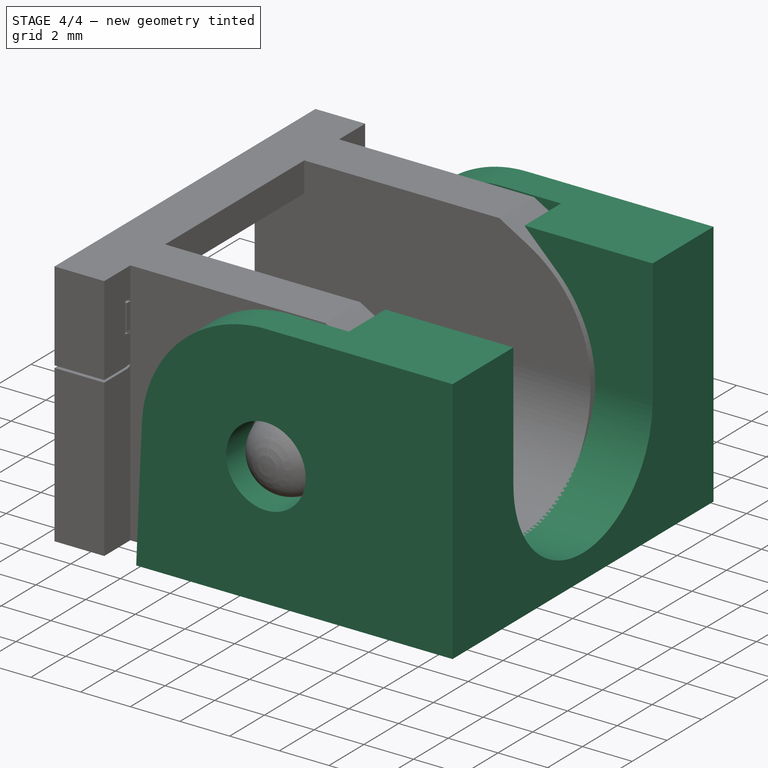
[diagram: stage 4 of 4 — iso view after this stage's code; geometry added in this stage tinted green]
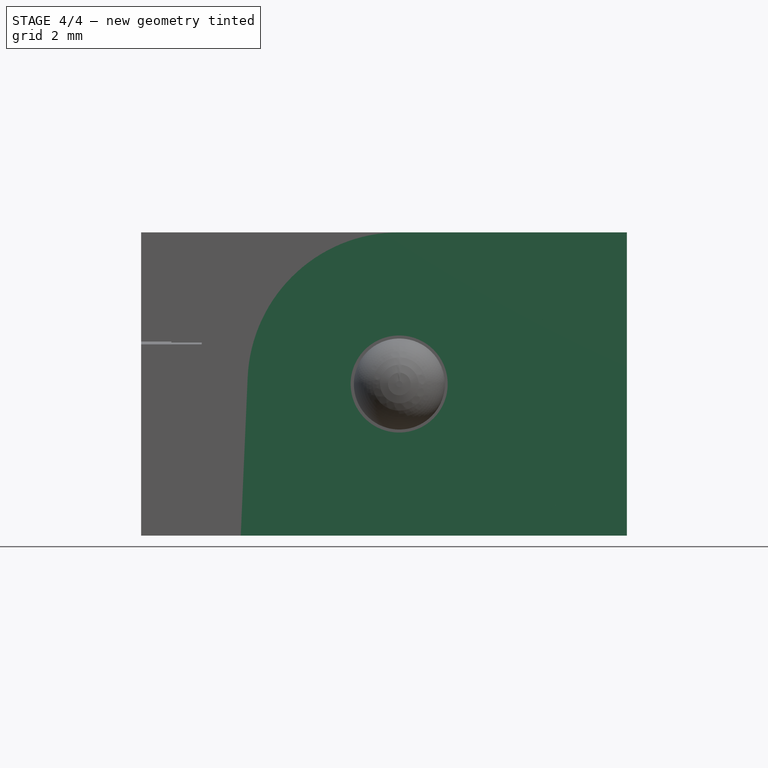
[diagram: stage 4 of 4 — front view after this stage's code; geometry added in this stage tinted green]
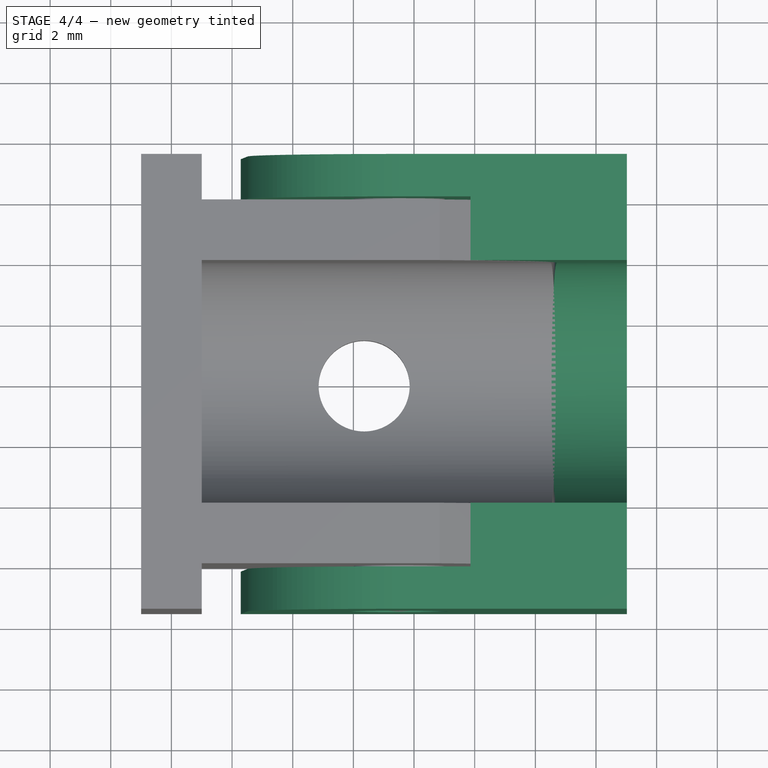
[diagram: stage 4 of 4 — top view after this stage's code; geometry added in this stage tinted green]
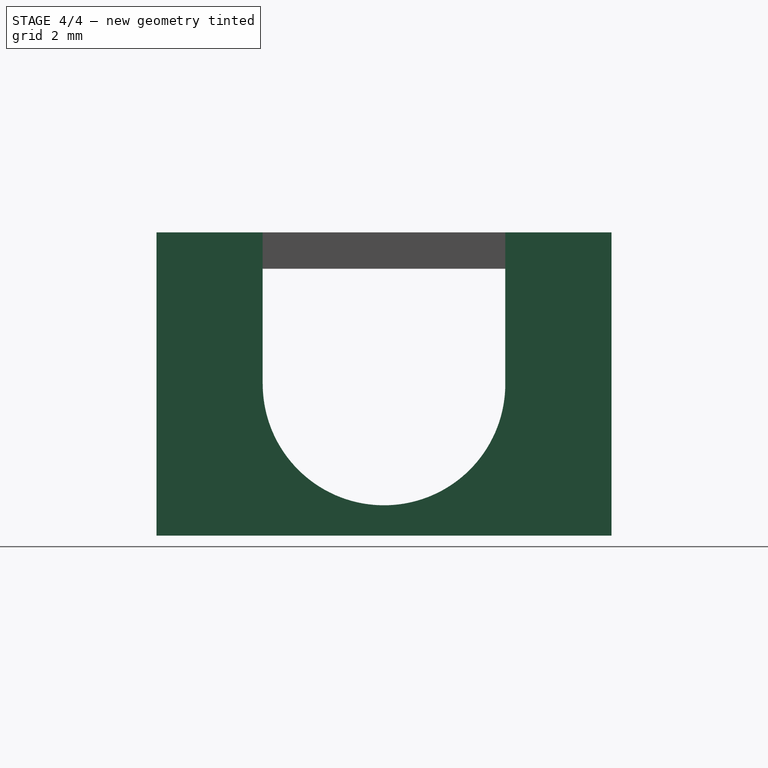
[diagram: stage 4 of 4 — right view after this stage's code; geometry added in this stage tinted green]
FEATURE [PartDesign::Pad] Pad001
  Direction = (1,1,1)
  Length = 15
  Length2 = 100
  Midplane = true
  Placement = pos=(0,0,0) rot=(1,0,0;1.5708rad)
  Profile = -> Sketch001
  Type = 0
FEATURE [PartDesign::Pocket] Pocket
  BaseFeature = -> Pad001
  Length = 12.2
  Length2 = 100
  Midplane = true
  Placement = pos=(0,0,0) rot=(1,0,0;1.5708rad)
  Profile = -> Sketch003
  Reversed = true
  Type = 0
FEATURE [Sketcher::SketchObject] Sketch006
  ExternalGeometry = -> [Pocket]
  MapMode = 5
  Placement = pos=(0,0,0) rot=(0.57735,0.57735,0.57735;2.0944rad)
  Support = -> [YZ_Plane001]
  sketch-geometry (7):
    g0: LineSegment StartX=-7.5 StartY=10 StartZ=0 EndX=7.5 EndY=-5.3e-15 EndZ=0
    g1: LineSegment StartX=7.5 StartY=10 StartZ=0 EndX=-7.5 EndY=-3.6e-15 EndZ=0
    g2: ArcOfCircle CenterX=3.8e-15 CenterY=5 CenterZ=0 NormalX=0 NormalY=0 NormalZ=1 AngleXU=0 Radius=4 StartAngle=3.14159 EndAngle=6.28319
    g3: LineSegment StartX=-4 StartY=5.00002 StartZ=0 EndX=4 EndY=5.00002 EndZ=0
    g4: LineSegment StartX=4 StartY=5.00002 StartZ=0 EndX=4 EndY=10 EndZ=0
    g5: LineSegment StartX=4 StartY=10 StartZ=0 EndX=-4 EndY=10 EndZ=0
    g6: LineSegment StartX=-4 StartY=10 StartZ=0 EndX=-4 EndY=5.00002 EndZ=0
  constraints (19):
    c: Coincident(g0,g-3)
    c: Coincident(g0,g-4)
    c: Coincident(g1,g-3)
    c: Coincident(g1,g-4)
    c: PointOnObject(g2,g1)
    c: PointOnObject(g2,g0)
    c: Coincident(g3,g4)
    c: Coincident(g4,g5)
    c: Coincident(g5,g6)
    c: Coincident(g6,g3)
    c: Horizontal(g3)
    c: Horizontal(g5)
    c: Vertical(g4)
    c: Vertical(g6)
    c: Coincident(g3,g2)
    c: Coincident(g2,g3)
    c: PointOnObject(g4,g-3)
    c: Diameter(g2) = 8
    c: Tangent(g4,g2)
FEATURE [PartDesign::Pocket] Pocket001
  BaseFeature = -> Pocket
  Length = 5
  Length2 = 100
  Midplane = true
  Placement = pos=(0,0,0) rot=(1,0,0;1.5708rad)
  Profile = -> Sketch006
  Type = 1
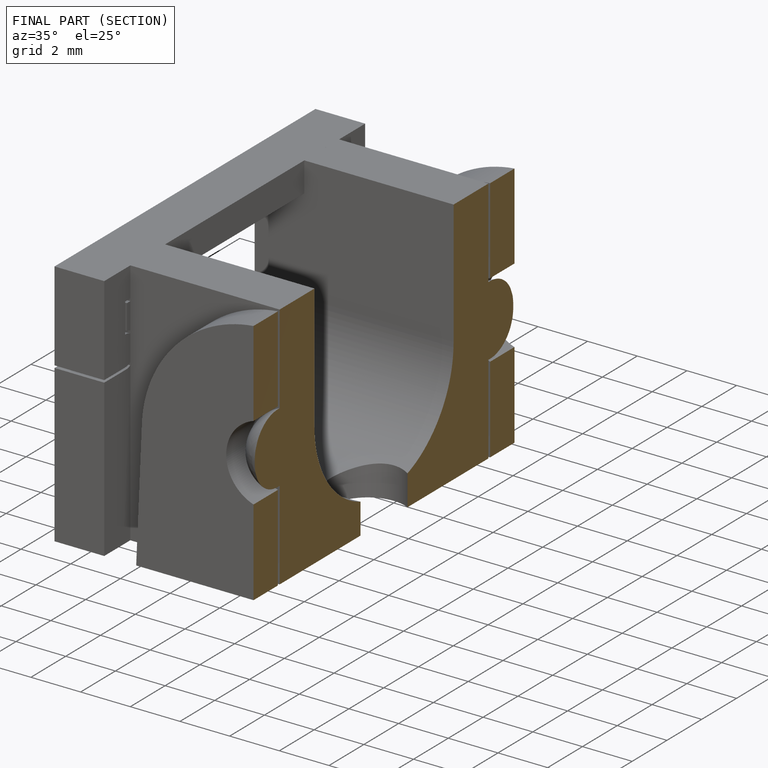
[diagram: finished part — half-section view (interior)]
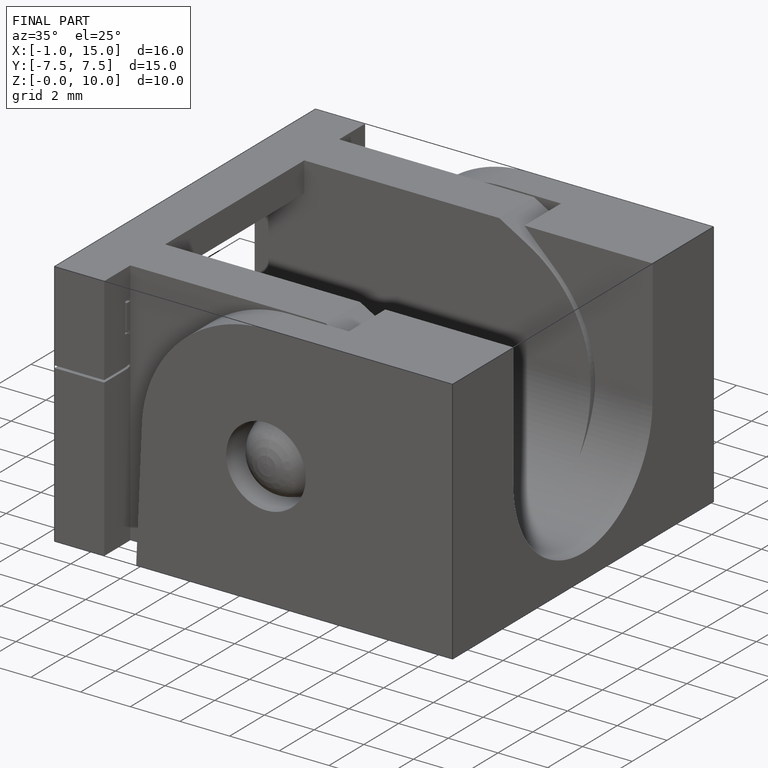
[diagram: finished part — iso view with bounding-box wireframe]
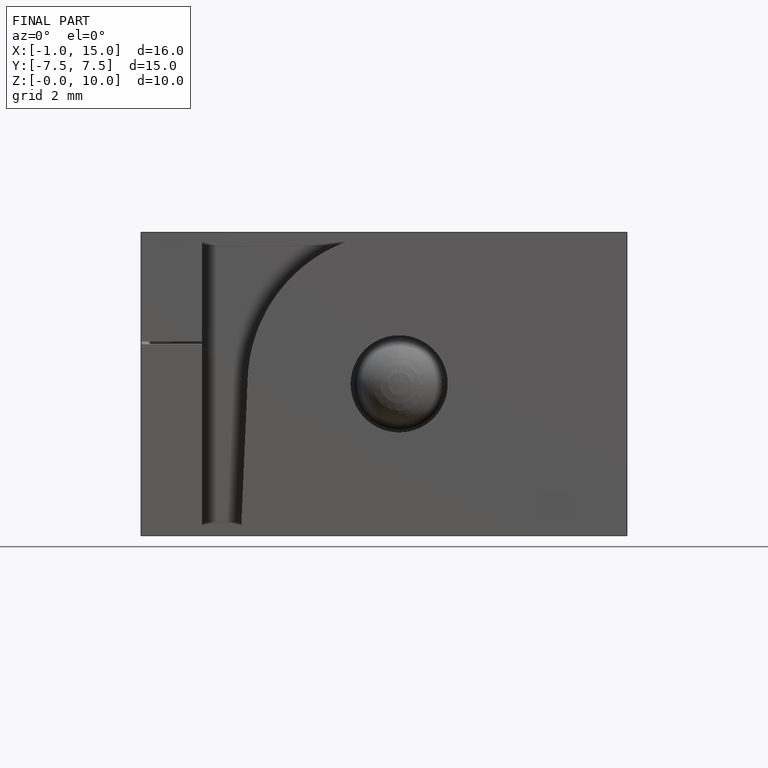
[diagram: finished part — front view with bounding-box wireframe]
